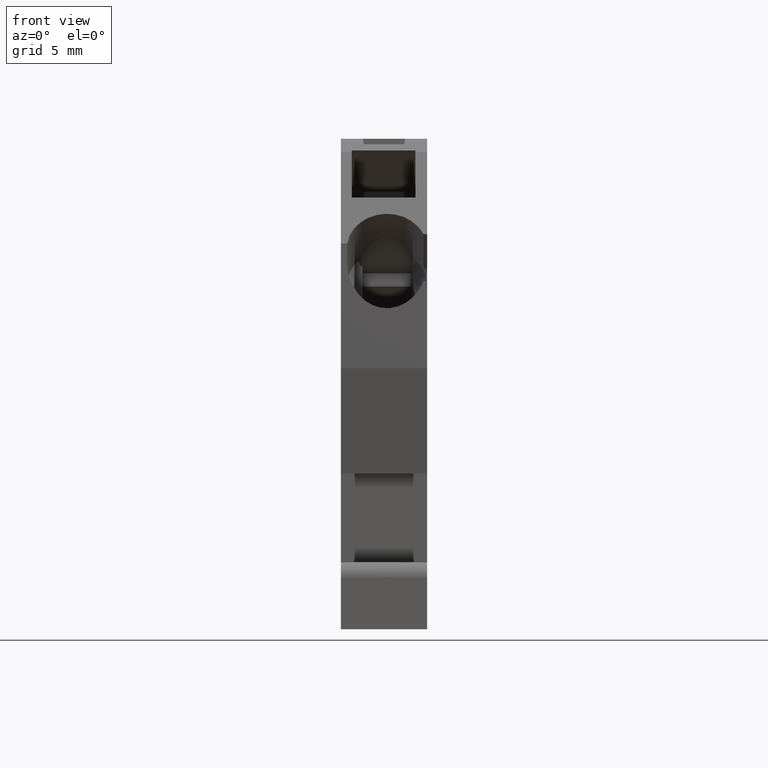
[diagram: clean part render]
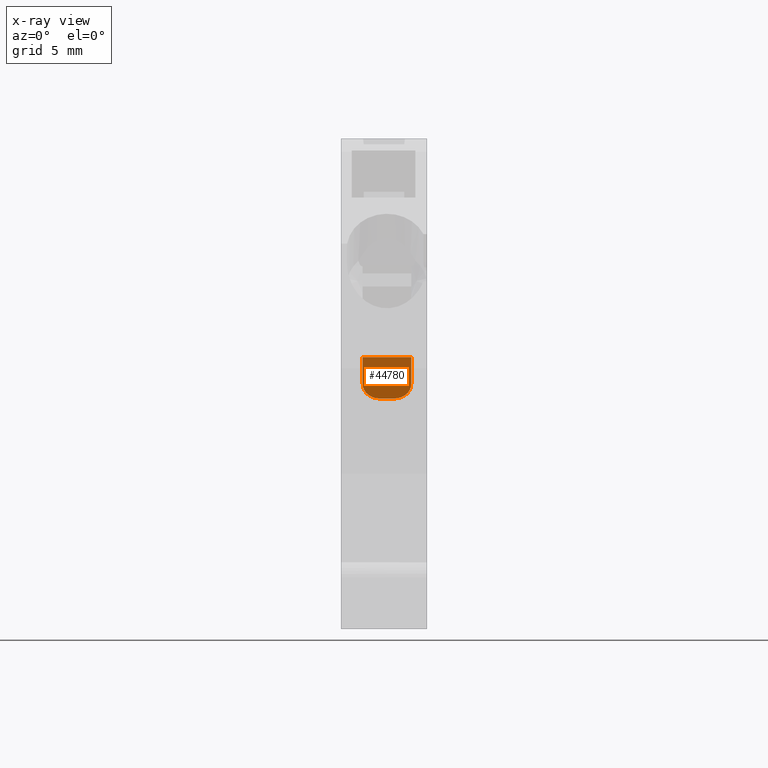
[diagram: x-ray — body ghosted, one internal face saturated and labeled with its STEP entity id]
A machine part, front view, then the same camera in x-ray: the body is ghosted and one INTERNAL B-rep face — a face not visible from any outside direction — is saturated and labeled: STEP entity #44780.
In plain terms, the highlighted planar face has unit normal (0, 0.866, 0.5).
Its self-contained STEP definition (entity closure, byte-faithful):
#40970=CARTESIAN_POINT('',(74.194299494454,115.899310157565,
5.70000000000281));
#40980=VERTEX_POINT('',#40970);
#41010=CARTESIAN_POINT('',(30.845060988278,190.982393719951,
5.7000000000153));
#41020=DIRECTION('',(0.499999999998663,-0.86602540378521,
-1.44070206015609E-13));
#41030=VECTOR('',#41020,1.);
#41040=LINE('',#41010,#41030);
#41050=CARTESIAN_POINT('',(75.1192994944497,114.297163160566,
5.70000000000254));
#41060=VERTEX_POINT('',#41050);
#41070=EDGE_CURVE('',#40980,#41060,#41040,.T.);
#44300=CARTESIAN_POINT('',(75.6192994944483,113.431137756781,
5.7000000000024));
#44310=DIRECTION('',(-0.86602540378521,-0.499999999998663,
-2.68852641531336E-13));
#44320=DIRECTION('',(0.499999999998663,-0.86602540378521,
-1.44070206015609E-13));
#44330=AXIS2_PLACEMENT_3D('',#44300,#44310,#44320);
#44340=PLANE('',#44330);
#44350=CARTESIAN_POINT('',(74.194299494454,115.899310157565,
5.70000000000281));
#44360=DIRECTION('',(-1.60798114433284E-13,-2.59194779103394E-13,1.));
#44370=VECTOR('',#44360,1.);
#44380=LINE('',#44350,#44370);
#44390=CARTESIAN_POINT('',(74.1942994944535,115.899310157565,
8.60000000000271));
#44400=VERTEX_POINT('',#44390);
#44410=EDGE_CURVE('',#40980,#44400,#44380,.T.);
#44420=ORIENTED_EDGE('',*,*,#44410,.F.);
#44430=CARTESIAN_POINT('',(30.8450609882775,190.98239371995,
8.60000000001521));
#44440=DIRECTION('',(-0.499999999998663,0.86602540378521,
1.44070206015609E-13));
#44450=VECTOR('',#44440,1.);
#44460=LINE('',#44430,#44450);
#44470=CARTESIAN_POINT('',(75.1192994944492,114.297163160565,
8.60000000000245));
#44480=VERTEX_POINT('',#44470);
#44490=EDGE_CURVE('',#44480,#44400,#44460,.T.);
#44500=ORIENTED_EDGE('',*,*,#44490,.T.);
#44510=CARTESIAN_POINT('',(75.1192994944494,114.297163160565,
7.60000000000245));
#44520=DIRECTION('',(0.866025403784999,0.499999999999029,
2.68852641531396E-13));
#44530=DIRECTION('',(-0.499999999999029,0.866025403784999,
1.44070206015495E-13));
#44540=AXIS2_PLACEMENT_3D('',#44510,#44520,#44530);
#44550=CIRCLE('',#44540,1.);
#44560=CARTESIAN_POINT('',(75.619299494448,113.43113775678,
7.6000000000023));
#44570=VERTEX_POINT('',#44560);
#44580=EDGE_CURVE('',#44480,#44570,#44550,.T.);
#44590=ORIENTED_EDGE('',*,*,#44580,.F.);
#44600=CARTESIAN_POINT('',(75.6192994944484,113.431137756781,
5.52500000000239));
#44610=DIRECTION('',(-1.60798114433284E-13,-2.59194779103394E-13,1.));
#44620=VECTOR('',#44610,1.);
#44630=LINE('',#44600,#44620);
#44640=CARTESIAN_POINT('',(75.6192994944482,113.43113775678,
6.7000000000024));
#44650=VERTEX_POINT('',#44640);
#44660=EDGE_CURVE('',#44650,#44570,#44630,.T.);
#44670=ORIENTED_EDGE('',*,*,#44660,.T.);
#44680=CARTESIAN_POINT('',(75.1192994944495,114.297163160566,
6.70000000000254));
#44690=DIRECTION('',(-0.866025403784999,-0.499999999999029,
-2.68852641531396E-13));
#44700=DIRECTION('',(0.499999999999029,-0.866025403784999,
-1.44070206015495E-13));
#44710=AXIS2_PLACEMENT_3D('',#44680,#44690,#44700);
#44720=CIRCLE('',#44710,1.);
#44730=EDGE_CURVE('',#41060,#44650,#44720,.T.);
#44740=ORIENTED_EDGE('',*,*,#44730,.T.);
#44750=ORIENTED_EDGE('',*,*,#41070,.T.);
#44760=EDGE_LOOP('',(#44750,#44740,#44670,#44590,#44500,#44420));
#44770=FACE_OUTER_BOUND('',#44760,.T.);
#44780=ADVANCED_FACE('',(#44770),#44340,.T.);